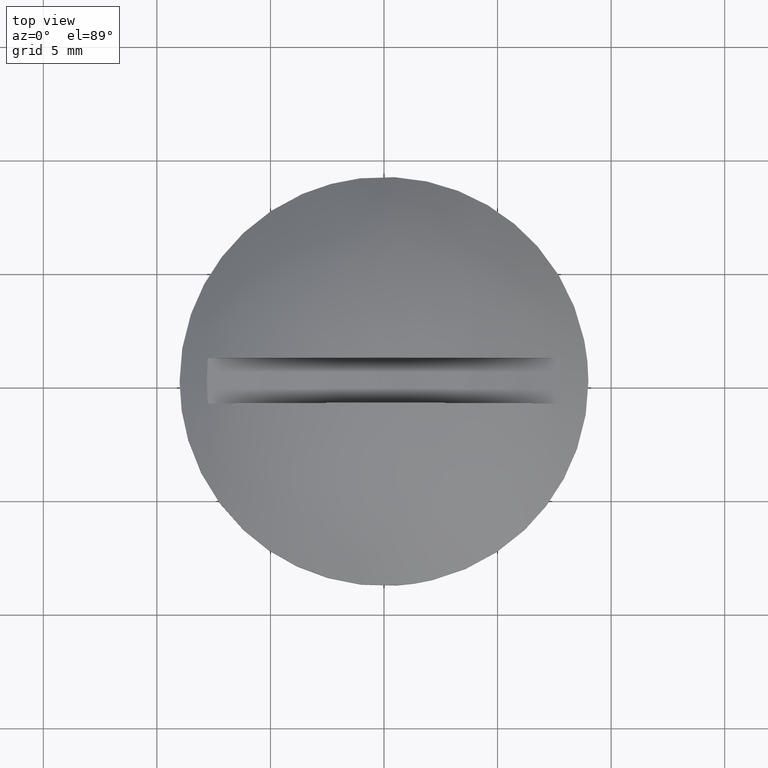
[diagram: clean part render]
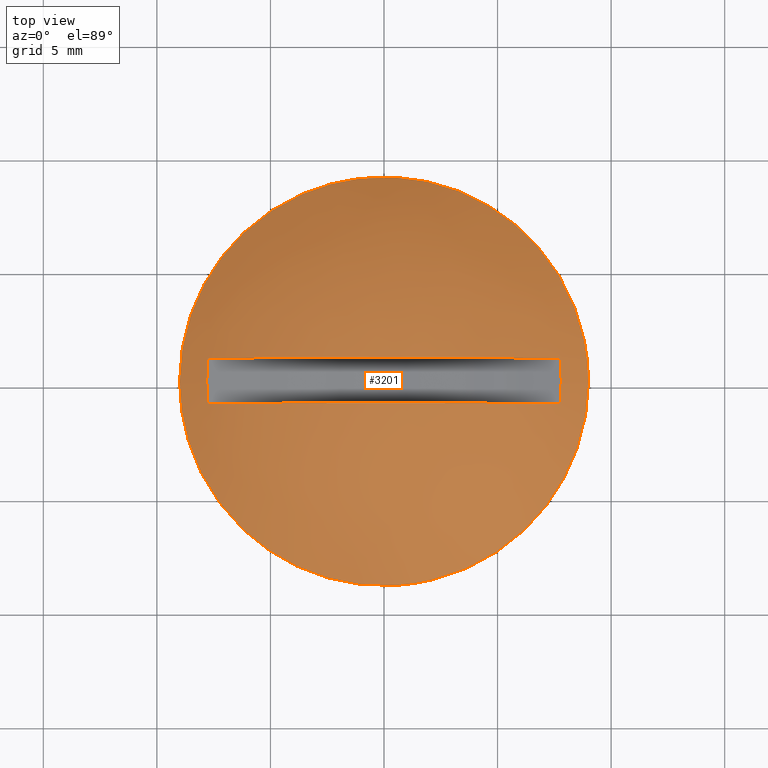
[diagram: same view with one face highlighted and labeled with its STEP entity id]
A machine part, top view. The second image highlights one B-rep face of the part: STEP entity #3201.
In plain terms, the highlighted face is a freeform B-spline surface patch.
Its self-contained STEP definition (entity closure, byte-faithful):
#316=CARTESIAN_POINT('',(-1.062305198718024,8.937086083549158,0.800003000000103));
#317=VERTEX_POINT('',#316);
#323=CARTESIAN_POINT('',(9.0,0.0,0.800003000000103));
#324=VERTEX_POINT('',#323);
#325=CARTESIAN_POINT('',(-1.062305198718025,8.937086083549156,0.800003000000103));
#326=CARTESIAN_POINT('',(-0.533015604871910,9.0,0.800003000000103));
#327=CARTESIAN_POINT('',(0.0,9.0,0.800003000000103));
#328=CARTESIAN_POINT('',(9.0,9.0,0.800003000000103));
#329=CARTESIAN_POINT('',(9.0,0.0,0.800003000000103));
#337=(BOUNDED_CURVE()B_SPLINE_CURVE(2,(#325,#326,#327,#328,#329),.UNSPECIFIED.,.F.,.U.)B_SPLINE_CURVE_WITH_KNOTS((3,2,3),(0.229562528605086,0.250000000000000,0.500000000000000),.UNSPECIFIED.)CURVE()GEOMETRIC_REPRESENTATION_ITEM()RATIONAL_B_SPLINE_CURVE((0.956026862165474,0.976056012874943,1.0,0.707106781186547,1.0))REPRESENTATION_ITEM(''));
#338=EDGE_CURVE('',#317,#324,#337,.T.);
#340=CARTESIAN_POINT('',(0.549434247540716,-8.983213345324852,0.800003000000103));
#341=VERTEX_POINT('',#340);
#342=CARTESIAN_POINT('',(9.0,0.0,0.800003000000103));
#343=CARTESIAN_POINT('',(9.000000000000002,-8.466357064948436,0.800003000000103));
#344=CARTESIAN_POINT('',(0.549434247540716,-8.983213345324852,0.800003000000103));
#352=(BOUNDED_CURVE()B_SPLINE_CURVE(2,(#342,#343,#344),.UNSPECIFIED.,.F.,.U.)B_SPLINE_CURVE_WITH_KNOTS((3,3),(0.500000000000000,0.739333012340874),.UNSPECIFIED.)CURVE()GEOMETRIC_REPRESENTATION_ITEM()RATIONAL_B_SPLINE_CURVE((1.0,0.719603934588647,0.976072149044717))REPRESENTATION_ITEM(''));
#353=EDGE_CURVE('',#324,#341,#352,.T.);
#427=CARTESIAN_POINT('',(-9.0,0.0,0.800003000000103));
#428=VERTEX_POINT('',#427);
#429=CARTESIAN_POINT('',(0.549434247540716,-8.983213345324852,0.800003000000103));
#430=CARTESIAN_POINT('',(0.274973561894159,-9.0,0.800003000000103));
#431=CARTESIAN_POINT('',(0.0,-9.0,0.800003000000103));
#432=CARTESIAN_POINT('',(-9.0,-9.0,0.800003000000103));
#433=CARTESIAN_POINT('',(-9.0,0.0,0.800003000000103));
#441=(BOUNDED_CURVE()B_SPLINE_CURVE(2,(#429,#430,#431,#432,#433),.UNSPECIFIED.,.F.,.U.)B_SPLINE_CURVE_WITH_KNOTS((3,2,3),(0.739333012340874,0.750000000000000,1.0),.UNSPECIFIED.)CURVE()GEOMETRIC_REPRESENTATION_ITEM()RATIONAL_B_SPLINE_CURVE((0.976072149044717,0.987502846597901,1.0,0.707106781186547,1.0))REPRESENTATION_ITEM(''));
#442=EDGE_CURVE('',#341,#428,#441,.T.);
#444=CARTESIAN_POINT('',(-9.0,0.0,0.800003000000103));
#445=CARTESIAN_POINT('',(-9.000000000000002,7.993573357543741,0.800003000000103));
#446=CARTESIAN_POINT('',(-1.062305198718024,8.937086083549158,0.800003000000103));
#454=(BOUNDED_CURVE()B_SPLINE_CURVE(2,(#444,#445,#446),.UNSPECIFIED.,.F.,.U.)B_SPLINE_CURVE_WITH_KNOTS((3,3),(0.0,0.229562528605086),.UNSPECIFIED.)CURVE()GEOMETRIC_REPRESENTATION_ITEM()RATIONAL_B_SPLINE_CURVE((1.0,0.731050768311605,0.956026862165474))REPRESENTATION_ITEM(''));
#455=EDGE_CURVE('',#428,#317,#454,.T.);
#3042=CARTESIAN_POINT('',(-7.756297594288951,-0.999999999999909,1.600005047999795));
#3043=VERTEX_POINT('',#3042);
#3044=CARTESIAN_POINT('',(7.756297594288951,-0.999999999999909,1.600005047999795));
#3045=VERTEX_POINT('',#3044);
#3059=CARTESIAN_POINT('',(7.756297594288951,-0.999999999999915,1.600005047999783));
#3060=CARTESIAN_POINT('',(3.469447E-015,-0.999999999999915,6.300019137504304));
#3061=CARTESIAN_POINT('',(-7.756297594288944,-0.999999999999915,1.600005047999785));
#3069=(BOUNDED_CURVE()B_SPLINE_CURVE(2,(#3059,#3060,#3061),.UNSPECIFIED.,.F.,.U.)CURVE()GEOMETRIC_REPRESENTATION_ITEM()QUASI_UNIFORM_CURVE()RATIONAL_B_SPLINE_CURVE((1.0,0.855235576435009,1.0))REPRESENTATION_ITEM(''));
#3070=EDGE_CURVE('',#3045,#3043,#3069,.T.);
#3080=CARTESIAN_POINT('',(7.756297594288951,1.0,1.600005047999795));
#3081=VERTEX_POINT('',#3080);
#3082=CARTESIAN_POINT('',(-7.756297594288951,1.0,1.600005047999795));
#3083=VERTEX_POINT('',#3082);
#3084=CARTESIAN_POINT('',(7.756297594288951,1.0,1.600005047999783));
#3085=CARTESIAN_POINT('',(3.469447E-015,1.0,6.300019137504304));
#3086=CARTESIAN_POINT('',(-7.756297594288944,1.0,1.600005047999785));
#3094=(BOUNDED_CURVE()B_SPLINE_CURVE(2,(#3084,#3085,#3086),.UNSPECIFIED.,.F.,.U.)CURVE()GEOMETRIC_REPRESENTATION_ITEM()QUASI_UNIFORM_CURVE()RATIONAL_B_SPLINE_CURVE((1.0,0.855235576435009,1.0))REPRESENTATION_ITEM(''));
#3095=EDGE_CURVE('',#3081,#3083,#3094,.T.);
#3128=CARTESIAN_POINT('',(-7.756297594288967,-0.999999999999909,1.600005047999784));
#3129=CARTESIAN_POINT('',(-7.788271615787219,-0.666666666666591,1.606671715733117));
#3130=CARTESIAN_POINT('',(-7.819938076451132,4.575333E-014,1.613338383466444));
#3131=CARTESIAN_POINT('',(-7.788271615787212,0.666666666666682,1.606671715733117));
#3132=CARTESIAN_POINT('',(-7.756297594288955,1.0,1.600005047999784));
#3133=B_SPLINE_CURVE_WITH_KNOTS('',3,(#3128,#3129,#3130,#3131,#3132),.UNSPECIFIED.,.F.,.U.,(4,1,4),(0.0,0.500000000000000,1.0),.UNSPECIFIED.);
#3134=EDGE_CURVE('',#3043,#3083,#3133,.T.);
#3137=CARTESIAN_POINT('',(7.756297594288955,1.0,1.600005047999784));
#3138=CARTESIAN_POINT('',(7.788271615787210,0.666666666666682,1.606671715733117));
#3139=CARTESIAN_POINT('',(7.819938076451114,4.586175E-014,1.613338383466455));
#3140=CARTESIAN_POINT('',(7.788271615787211,-0.666666666666591,1.606671715733122));
#3141=CARTESIAN_POINT('',(7.756297594288957,-0.999999999999909,1.600005047999789));
#3142=B_SPLINE_CURVE_WITH_KNOTS('',3,(#3137,#3138,#3139,#3140,#3141),.UNSPECIFIED.,.F.,.U.,(4,1,4),(0.0,0.500000000000000,1.0),.UNSPECIFIED.);
#3143=EDGE_CURVE('',#3081,#3045,#3142,.T.);
#3165=CARTESIAN_POINT('',(-8.668590871397656,-8.668399436222908,-2.556240766830940));
#3166=CARTESIAN_POINT('',(-4.847879113813923,-9.695544108724533,0.245377941945507));
#3167=CARTESIAN_POINT('',(4.847878561237814,-9.695544108724533,0.245377941945507));
#3168=CARTESIAN_POINT('',(8.668590092677633,-8.668399645570821,-2.556240195817856));
#3169=CARTESIAN_POINT('',(-9.695707485270390,-4.847746683743837,0.245239541190159));
#3170=CARTESIAN_POINT('',(-5.499502946345536,-5.499381496582465,3.800011000000088));
#3171=CARTESIAN_POINT('',(5.499502319495346,-5.499381496582465,3.800011000000088));
#3172=CARTESIAN_POINT('',(9.695706642026785,-4.847746814692371,0.245240255535236));
#3173=CARTESIAN_POINT('',(-9.695707485270390,4.847774014610872,0.245239541190172));
#3174=CARTESIAN_POINT('',(-5.499502946345536,5.499412501268608,3.800011000000100));
#3175=CARTESIAN_POINT('',(5.499502319495346,5.499412501268608,3.800011000000100));
#3176=CARTESIAN_POINT('',(9.695706642026785,4.847774145560145,0.245240255535248));
#3177=CARTESIAN_POINT('',(-8.668580516806671,8.668437952935129,-2.556269009176873));
#3178=CARTESIAN_POINT('',(-4.847872636880484,9.695585817090857,0.245342610024617));
#3179=CARTESIAN_POINT('',(4.847872084305113,9.695585817090857,0.245342610024617));
#3180=CARTESIAN_POINT('',(8.668579738087342,8.668438162283731,-2.556268438165156));
#3188=(BOUNDED_SURFACE()B_SPLINE_SURFACE(2,2,((#3165,#3169,#3173,#3177),(#3166,#3170,#3174,#3178),(#3167,#3171,#3175,#3179),(#3168,#3172,#3176,#3180)),.UNSPECIFIED.,.F.,.F.,.U.)B_SPLINE_SURFACE_WITH_KNOTS((3,1,3),(3,1,3),(1.152420298242569,11.305347194732111,21.458272933959961),(1.152644513154030,11.305347194732120,21.458107115721699),.UNSPECIFIED.)GEOMETRIC_REPRESENTATION_ITEM()RATIONAL_B_SPLINE_SURFACE(((1.268834353341407,1.134420145141614,1.134420145141614,1.268835868959879),(1.134414208199793,1.0,1.0,1.134415723818265),(1.134414208199793,1.0,1.0,1.134415723818265),(1.268834322698170,1.134420114498377,1.134420114498377,1.268835838316641)))REPRESENTATION_ITEM('')SURFACE());
#3189=ORIENTED_EDGE('',*,*,#442,.F.);
#3190=ORIENTED_EDGE('',*,*,#353,.F.);
#3191=ORIENTED_EDGE('',*,*,#338,.F.);
#3192=ORIENTED_EDGE('',*,*,#455,.F.);
#3193=EDGE_LOOP('',(#3189,#3190,#3191,#3192));
#3194=FACE_OUTER_BOUND('',#3193,.T.);
#3195=ORIENTED_EDGE('',*,*,#3095,.F.);
#3196=ORIENTED_EDGE('',*,*,#3143,.T.);
#3197=ORIENTED_EDGE('',*,*,#3070,.T.);
#3198=ORIENTED_EDGE('',*,*,#3134,.T.);
#3199=EDGE_LOOP('',(#3195,#3196,#3197,#3198));
#3200=FACE_BOUND('',#3199,.T.);
#3201=ADVANCED_FACE('',(#3194,#3200),#3188,.T.);